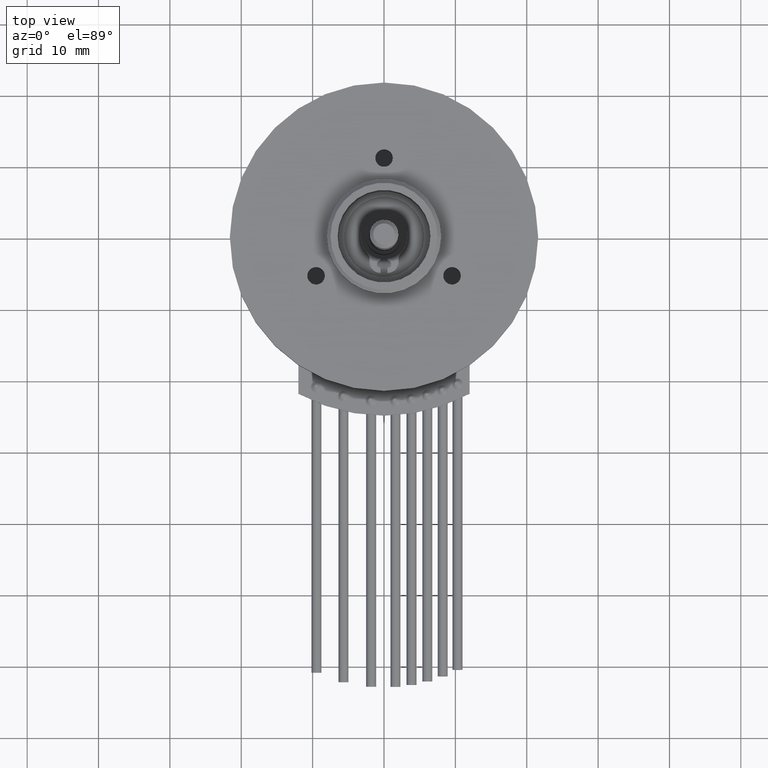
[diagram: clean part render]
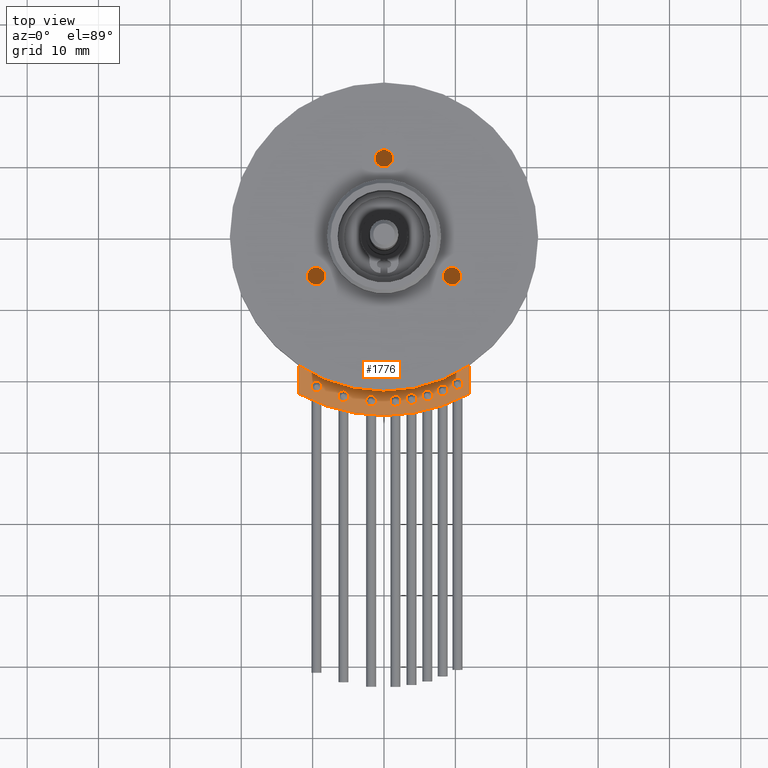
[diagram: same view with one face highlighted and labeled with its STEP entity id]
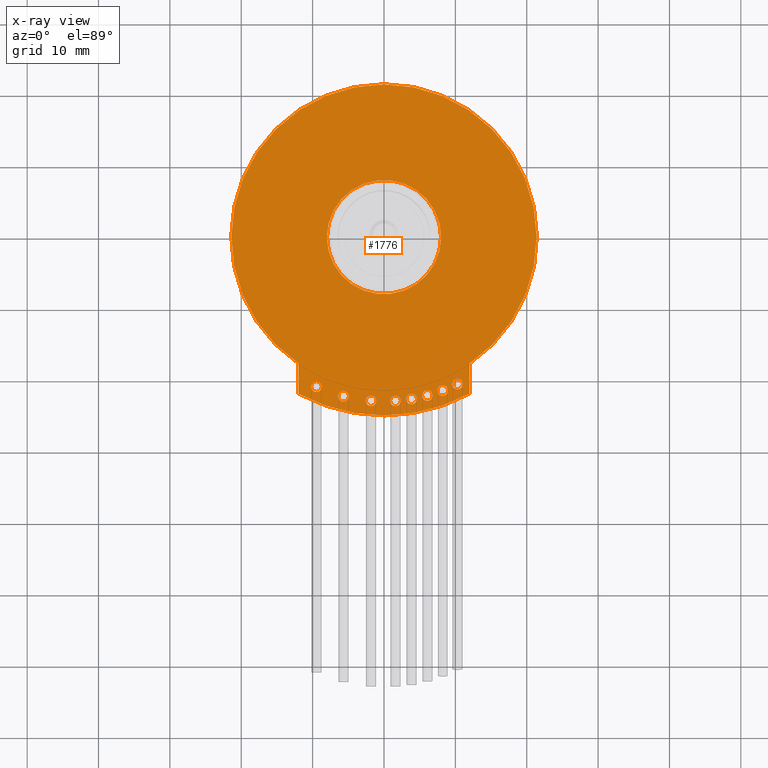
[diagram: x-ray of the same camera — body ghosted, the highlighted face saturated]
A machine part, top view. The second image highlights one B-rep face of the part: STEP entity #1776.
The next image is the same camera in x-ray: the body ghosted, the highlighted face saturated — about 0% of this face is hidden behind the body in this view.
In plain terms, the highlighted planar face has unit normal (0, 0, -1).
Its self-contained STEP definition (entity closure, byte-faithful):
#1430=CARTESIAN_POINT('',(-8.717581234617050,-20.961033027165605,1.200000000000000));
#1431=VERTEX_POINT('',#1430);
#1432=CARTESIAN_POINT('',(-9.467581234617050,-20.961033027165605,1.200000000000000));
#1433=DIRECTION('',(0.0,0.0,-1.0));
#1434=DIRECTION('',(-1.0,0.0,0.0));
#1435=AXIS2_PLACEMENT_3D('',#1432,#1433,#1434);
#1436=CIRCLE('',#1435,0.750000000000000);
#1437=EDGE_CURVE('',#1431,#1431,#1436,.T.);
#1450=CARTESIAN_POINT('',(-4.930977292623088,-22.287361822358001,1.200000000000000));
#1451=VERTEX_POINT('',#1450);
#1452=CARTESIAN_POINT('',(-5.680977292623089,-22.287361822358001,1.200000000000000));
#1453=DIRECTION('',(0.0,0.0,-1.0));
#1454=DIRECTION('',(-1.0,0.0,0.0));
#1455=AXIS2_PLACEMENT_3D('',#1452,#1453,#1454);
#1456=CIRCLE('',#1455,0.750000000000000);
#1457=EDGE_CURVE('',#1451,#1451,#1456,.T.);
#1470=CARTESIAN_POINT('',(-1.054559201740437,-22.929098675861944,1.200000000000000));
#1471=VERTEX_POINT('',#1470);
#1472=CARTESIAN_POINT('',(-1.804559201740437,-22.929098675861944,1.200000000000000));
#1473=DIRECTION('',(0.0,0.0,-1.0));
#1474=DIRECTION('',(-1.0,0.0,0.0));
#1475=AXIS2_PLACEMENT_3D('',#1472,#1473,#1474);
#1476=CIRCLE('',#1475,0.750000000000000);
#1477=EDGE_CURVE('',#1471,#1471,#1476,.T.);
#1490=CARTESIAN_POINT('',(2.354398896114897,-22.943973155975957,1.200000000000000));
#1491=VERTEX_POINT('',#1490);
#1492=CARTESIAN_POINT('',(1.604398896114896,-22.943973155975957,1.200000000000000));
#1493=DIRECTION('',(0.0,0.0,-1.0));
#1494=DIRECTION('',(-1.0,0.0,0.0));
#1495=AXIS2_PLACEMENT_3D('',#1492,#1493,#1494);
#1496=CIRCLE('',#1495,0.750000000000000);
#1497=EDGE_CURVE('',#1491,#1491,#1496,.T.);
#1510=CARTESIAN_POINT('',(4.605469920286760,-22.674552954661845,1.200000000000000));
#1511=VERTEX_POINT('',#1510);
#1512=CARTESIAN_POINT('',(3.855469920286760,-22.674552954661845,1.200000000000000));
#1513=DIRECTION('',(0.0,0.0,-1.0));
#1514=DIRECTION('',(-1.0,0.0,0.0));
#1515=AXIS2_PLACEMENT_3D('',#1512,#1513,#1514);
#1516=CIRCLE('',#1515,0.750000000000000);
#1517=EDGE_CURVE('',#1511,#1511,#1516,.T.);
#1530=CARTESIAN_POINT('',(6.819080149203607,-22.184820624529351,1.200000000000000));
#1531=VERTEX_POINT('',#1530);
#1532=CARTESIAN_POINT('',(6.069080149203607,-22.184820624529351,1.200000000000000));
#1533=DIRECTION('',(0.0,0.0,-1.0));
#1534=DIRECTION('',(-1.0,0.0,0.0));
#1535=AXIS2_PLACEMENT_3D('',#1532,#1533,#1534);
#1536=CIRCLE('',#1535,0.750000000000000);
#1537=EDGE_CURVE('',#1531,#1531,#1536,.T.);
#1550=CARTESIAN_POINT('',(8.973721543307530,-21.479534538209613,1.200000000000000));
#1551=VERTEX_POINT('',#1550);
#1552=CARTESIAN_POINT('',(8.223721543307528,-21.479534538209613,1.200000000000000));
#1553=DIRECTION('',(0.0,0.0,-1.0));
#1554=DIRECTION('',(-1.0,0.0,0.0));
#1555=AXIS2_PLACEMENT_3D('',#1552,#1553,#1554);
#1556=CIRCLE('',#1555,0.750000000000000);
#1557=EDGE_CURVE('',#1551,#1551,#1556,.T.);
#1570=CARTESIAN_POINT('',(11.048459020291741,-20.565547447305445,1.200000000000000));
#1571=VERTEX_POINT('',#1570);
#1572=CARTESIAN_POINT('',(10.298459020291741,-20.565547447305445,1.200000000000000));
#1573=DIRECTION('',(0.0,0.0,-1.0));
#1574=DIRECTION('',(-1.0,0.0,0.0));
#1575=AXIS2_PLACEMENT_3D('',#1572,#1573,#1574);
#1576=CIRCLE('',#1575,0.750000000000000);
#1577=EDGE_CURVE('',#1571,#1571,#1576,.T.);
#1598=CARTESIAN_POINT('',(12.000000000000004,-21.931712199461302,1.200000000000000));
#1599=VERTEX_POINT('',#1598);
#1606=CARTESIAN_POINT('',(-12.0,-21.931712199461305,1.200000000000000));
#1607=VERTEX_POINT('',#1606);
#1608=CARTESIAN_POINT('',(0.0,0.0,1.200000000000000));
#1609=DIRECTION('',(0.0,0.0,1.000000000000000));
#1610=DIRECTION('',(-0.480000000000000,-0.877268487978452,0.0));
#1611=AXIS2_PLACEMENT_3D('',#1608,#1609,#1610);
#1612=CIRCLE('',#1611,25.0);
#1613=EDGE_CURVE('',#1607,#1599,#1612,.T.);
#1637=CARTESIAN_POINT('',(12.000000000000004,-17.718916445426341,1.200000000000000));
#1638=VERTEX_POINT('',#1637);
#1645=CARTESIAN_POINT('',(12.000000000000004,-21.931712199461302,1.200000000000000));
#1646=DIRECTION('',(0.0,1.0,0.0));
#1647=VECTOR('',#1646,4.212795754034961);
#1648=LINE('',#1645,#1647);
#1649=EDGE_CURVE('',#1599,#1638,#1648,.T.);
#1669=CARTESIAN_POINT('',(-12.0,-17.718916445426341,1.200000000000000));
#1670=VERTEX_POINT('',#1669);
#1671=CARTESIAN_POINT('',(-12.0,-17.718916445426341,1.200000000000000));
#1672=DIRECTION('',(0.0,-1.0,0.0));
#1673=VECTOR('',#1672,4.212795754034964);
#1674=LINE('',#1671,#1673);
#1675=EDGE_CURVE('',#1670,#1607,#1674,.T.);
#1692=CARTESIAN_POINT('',(0.0,0.0,1.200000000000000));
#1693=DIRECTION('',(0.0,0.0,-1.0));
#1694=DIRECTION('',(-1.0,0.0,0.0));
#1695=AXIS2_PLACEMENT_3D('',#1692,#1693,#1694);
#1696=CIRCLE('',#1695,21.400000000000002);
#1697=EDGE_CURVE('',#1670,#1638,#1696,.T.);
#1715=CARTESIAN_POINT('',(-8.0,9.797174E-016,1.200000000000000));
#1716=VERTEX_POINT('',#1715);
#1717=CARTESIAN_POINT('',(0.0,0.0,1.200000000000000));
#1718=DIRECTION('',(0.0,0.0,-1.0));
#1719=DIRECTION('',(1.0,0.0,0.0));
#1720=AXIS2_PLACEMENT_3D('',#1717,#1718,#1719);
#1721=CIRCLE('',#1720,8.0);
#1722=EDGE_CURVE('',#1716,#1716,#1721,.T.);
#1738=CARTESIAN_POINT('',(0.0,0.0,1.200000000000000));
#1739=DIRECTION('',(0.0,0.0,-1.0));
#1740=DIRECTION('',(-1.0,0.0,0.0));
#1741=AXIS2_PLACEMENT_3D('',#1738,#1739,#1740);
#1742=PLANE('',#1741);
#1743=ORIENTED_EDGE('',*,*,#1697,.F.);
#1744=ORIENTED_EDGE('',*,*,#1675,.T.);
#1745=ORIENTED_EDGE('',*,*,#1613,.T.);
#1746=ORIENTED_EDGE('',*,*,#1649,.T.);
#1747=EDGE_LOOP('',(#1743,#1744,#1745,#1746));
#1748=FACE_OUTER_BOUND('',#1747,.T.);
#1749=ORIENTED_EDGE('',*,*,#1437,.T.);
#1750=EDGE_LOOP('',(#1749));
#1751=FACE_BOUND('',#1750,.T.);
#1752=ORIENTED_EDGE('',*,*,#1457,.T.);
#1753=EDGE_LOOP('',(#1752));
#1754=FACE_BOUND('',#1753,.T.);
#1755=ORIENTED_EDGE('',*,*,#1477,.T.);
#1756=EDGE_LOOP('',(#1755));
#1757=FACE_BOUND('',#1756,.T.);
#1758=ORIENTED_EDGE('',*,*,#1497,.T.);
#1759=EDGE_LOOP('',(#1758));
#1760=FACE_BOUND('',#1759,.T.);
#1761=ORIENTED_EDGE('',*,*,#1517,.T.);
#1762=EDGE_LOOP('',(#1761));
#1763=FACE_BOUND('',#1762,.T.);
#1764=ORIENTED_EDGE('',*,*,#1537,.T.);
#1765=EDGE_LOOP('',(#1764));
#1766=FACE_BOUND('',#1765,.T.);
#1767=ORIENTED_EDGE('',*,*,#1557,.T.);
#1768=EDGE_LOOP('',(#1767));
#1769=FACE_BOUND('',#1768,.T.);
#1770=ORIENTED_EDGE('',*,*,#1577,.T.);
#1771=EDGE_LOOP('',(#1770));
#1772=FACE_BOUND('',#1771,.T.);
#1773=ORIENTED_EDGE('',*,*,#1722,.T.);
#1774=EDGE_LOOP('',(#1773));
#1775=FACE_BOUND('',#1774,.T.);
#1776=ADVANCED_FACE('',(#1748,#1751,#1754,#1757,#1760,#1763,#1766,#1769,#1772,#1775),#1742,.F.);